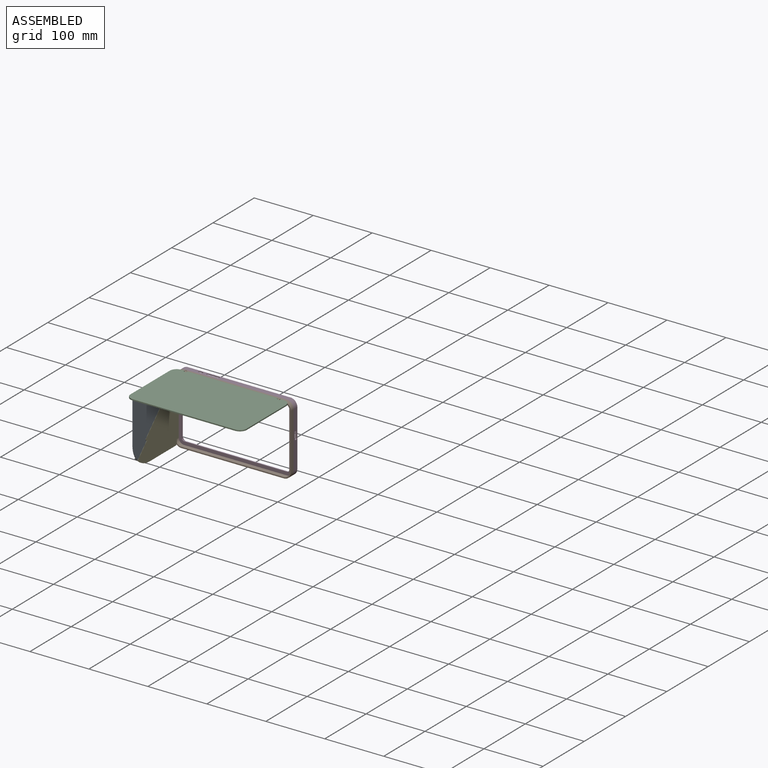
[diagram: assembled view]
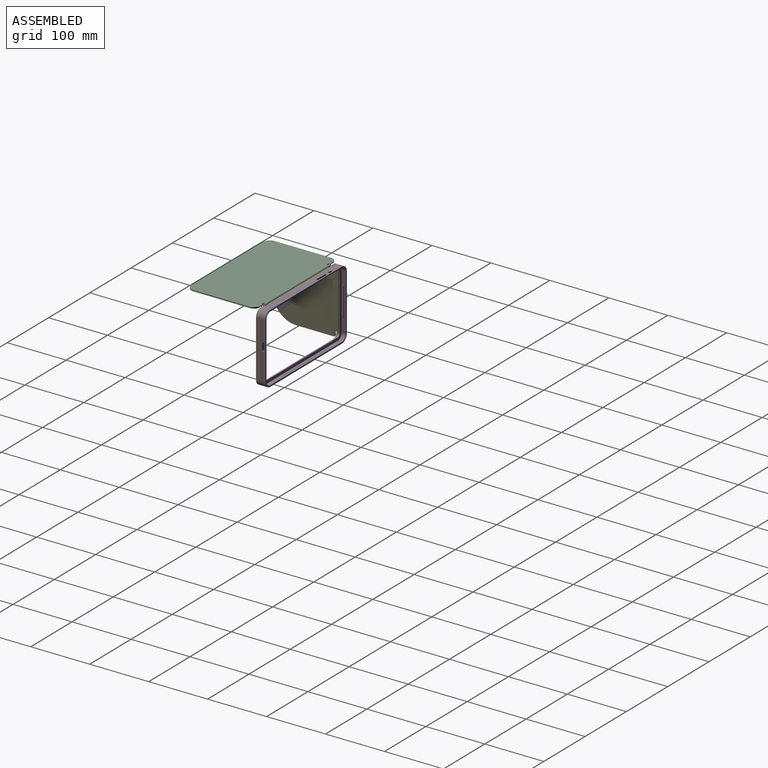
[diagram: assembled view, second angle]
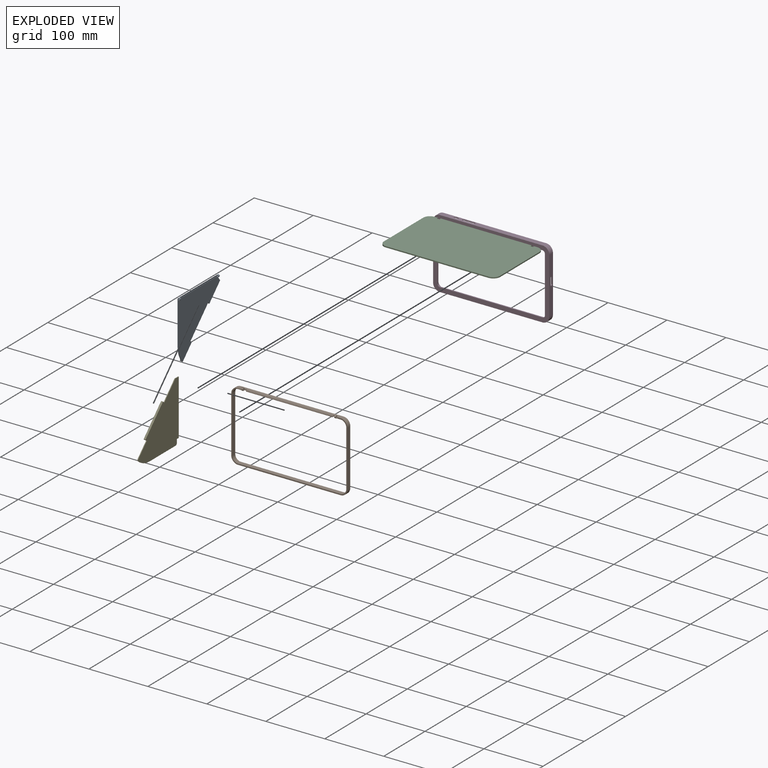
[diagram: exploded view]
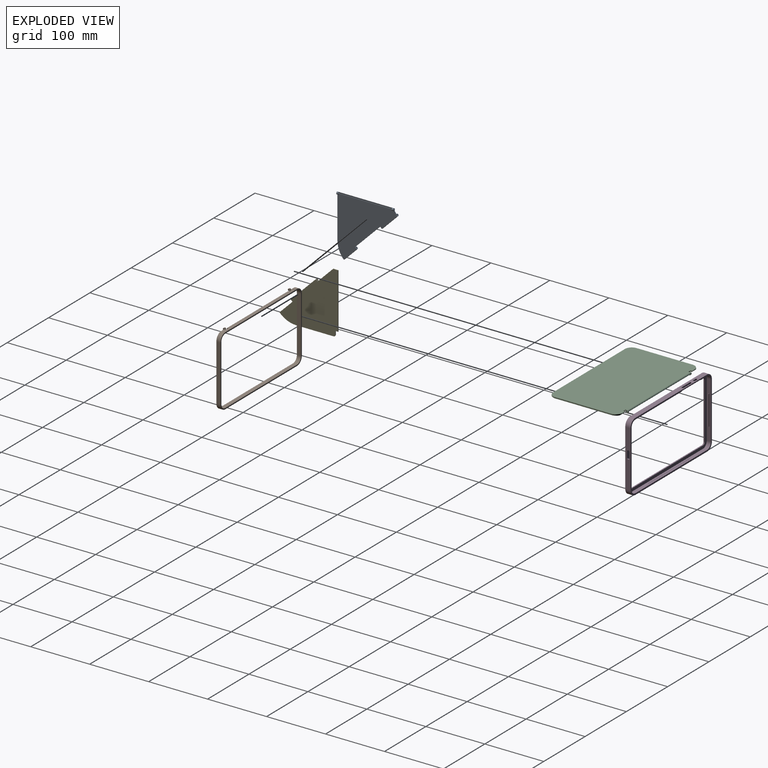
[diagram: exploded view, second angle]
ASSEMBLY  parts=5 mates=4
PART A: 29 faces, bbox 101.8x102.1x6.8 mm
  f0: plane 1.2x0.14mm, normal (0.71,-0.71,0), area 0.2mm2, adj f2,f3,f5,f28
  f1: plane 1.2x0.15mm, normal (0,1,0), area 0.2mm2, adj f2,f3,f14,f28
  f2: plane 99.14x97.2mm, normal (0,0,-1), area 5431.3mm2, adj f0,f1,f5,f6,f7,f10,f14,f15
  f3: plane 101.69x99.36mm, normal (0,0,1), area 5606.8mm2, adj f0,f1,f5,f6,f8,f9,f10,f11
  f4: cylinder r=1mm len=27.7mm, axis (0.71,0.71,0), area 185.8mm2, adj f5,f6,f27
  f5: plane 4x2.83mm, normal (0.71,0.71,0), area 11mm2, adj f0,f2,f3,f4,f7,f9,f26,f27
  f6: plane 4x2.97mm, normal (-0.71,-0.71,0), area 11.2mm2, adj f2,f3,f4,f7,f9,f10,f26,f27
  f7: cylinder r=2mm len=29.12mm, axis (0.71,0.71,0), area 294.8mm2, adj f2,f5,f6,f26
  f8: plane 21.77x21.77mm, normal (0.71,-0.71,0), area 36.9mm2, adj f3,f20,f22,f24
  f9: plane 26.29x26.29mm, normal (0.71,-0.71,0), area 44.6mm2, adj f3,f5,f6,f26
  f10: plane 42.71x42.71mm, normal (0.71,-0.71,0), area 72.5mm2, adj f2,f3,f6,f22
  f11: plane 4.8x2.8mm, normal (-1,0,0), area 6.6mm2, adj f3,f12,f16,f17,f18
  f12: plane 90.5x1.23mm, normal (0,0,1), area 111.6mm2, adj f11,f13,f16,f17
  f13: plane 4.8x2.8mm, normal (1,0,0), area 6.6mm2, adj f3,f12,f16,f17,f19
  f14: plane 5x4mm, normal (1,0,0), area 11.6mm2, adj f1,f2,f3,f16,f17,f18
  f15: plane 74.5x4mm, normal (-1,0,0), area 95mm2, adj f2,f3,f16,f17,f19,f24
  f16: cylinder r=1mm len=96.5mm, axis (1,0,0), area 154.2mm2, adj f3,f11,f12,f13,f14,f15
  f17: cylinder r=2mm len=96.5mm, axis (1,0,0), area 266.4mm2, adj f2,f11,f12,f13,f14,f15,f18,f19
  f18: cylinder r=0.8mm len=3mm, axis (1,0,0), area 3.8mm2, adj f3,f11,f14,f17
  f19: cylinder r=0.8mm len=3mm, axis (1,0,0), area 3.8mm2, adj f3,f13,f15,f17
  f20: plane 21.8x21.79mm, normal (0,0,1), area 1mm2, adj f8,f22,f24,f25
  f21: plane 22.58x22.52mm, normal (0,0,-1), area 36.8mm2, adj f22,f23,f24
  f22: plane 4x2.97mm, normal (0.71,0.71,0), area 11.2mm2, adj f2,f3,f8,f10,f20,f21,f23,f25
  f23: cylinder r=1mm len=23.16mm, axis (0.71,0.71,0), area 153.3mm2, adj f21,f22,f24
  f24: cylinder r=40mm len=27.61mm, axis (0,0,-1), area 42.8mm2, adj f2,f3,f8,f15,f20,f21,f23,f25
  f25: cylinder r=2mm len=24.6mm, axis (0.71,0.71,0), area 243.2mm2, adj f2,f20,f22,f24
  f26: plane 26.31x26.31mm, normal (0,0,1), area 1.2mm2, adj f5,f6,f7,f9
  f27: plane 27.14x27.14mm, normal (0,0,-1), area 44.6mm2, adj f4,f5,f6
  f28: plane 3.37x2.49mm, normal (0.8,0.6,0), area 5mm2, adj f0,f1,f2,f3
PART B: 41 faces, bbox 197x9x120 mm
  f0: cylinder r=1mm len=3mm, axis (1,0,0), area 16.5mm2, adj f1,f2,f29,f31,f39
  f1: plane 174x7mm, normal (0,0,1), area 1017.2mm2, adj f0,f2,f3,f17,f19,f20,f21,f22
  f2: plane 197x118mm, normal (0,-1,0), area 876.4mm2, adj f0,f1,f3,f4,f6,f7,f8,f9
  f3: cylinder r=11.5mm len=11.5mm, axis (0,1,0), area 122.2mm2, adj f1,f2,f12,f19,f34
  f4: plane 174x7mm, normal (0,0,-1), area 1197.4mm2, adj f2,f5,f6,f18,f19,f20,f21,f22
  f5: plane 147x1mm, normal (0,-1,0), area 147mm2, adj f4,f21,f24,f35
  f6: cylinder r=9.5mm len=9.5mm, axis (0,1,0), area 104.5mm2, adj f2,f4,f7,f19
  f7: plane 95x7mm, normal (-1,0,0), area 665mm2, adj f2,f6,f8,f19
  f8: cylinder r=9.5mm len=9.5mm, axis (0,1,0), area 104.5mm2, adj f2,f7,f9,f19
  f9: plane 174x7mm, normal (0,0,1), area 1218mm2, adj f2,f8,f10,f19
  f10: cylinder r=9.5mm len=9.5mm, axis (0,1,0), area 104.5mm2, adj f2,f9,f11,f19
  f11: plane 95x7mm, normal (1,0,0), area 665mm2, adj f2,f10,f18,f19
  f12: plane 95x7mm, normal (-1,0,0), area 665mm2, adj f2,f3,f13,f19
  f13: cylinder r=11.5mm len=11.5mm, axis (0,1,0), area 126.4mm2, adj f2,f12,f14,f19
  f14: plane 174x7mm, normal (0,0,-1), area 1218mm2, adj f2,f13,f15,f19
  f15: cylinder r=11.5mm len=11.5mm, axis (0,1,0), area 126.4mm2, adj f2,f14,f16,f19
  f16: plane 95x7mm, normal (1,0,0), area 665mm2, adj f2,f15,f17,f19
  f17: cylinder r=11.5mm len=11.5mm, axis (0,1,0), area 126.4mm2, adj f1,f2,f16,f19
  f18: cylinder r=9.5mm len=9.5mm, axis (0,1,0), area 104.5mm2, adj f2,f4,f11,f19
  f19: plane 197x118mm, normal (0,1,0), area 1207.9mm2, adj f1,f3,f4,f6,f7,f8,f9,f10
  f20: cylinder r=3mm len=4.6mm, axis (1,0,0), area 10.1mm2, adj f1,f4,f21,f22
  f21: plane 3x2mm, normal (1,0,0), area 4.7mm2, adj f1,f4,f5,f20,f35
  f22: plane 3x2mm, normal (-1,0,0), area 2.4mm2, adj f1,f4,f20,f26
  f23: cylinder r=3mm len=4.6mm, axis (-1,0,0), area 10.1mm2, adj f1,f4,f24,f25
  f24: plane 3x2mm, normal (-1,0,0), area 4.7mm2, adj f1,f4,f5,f23,f35
  f25: plane 3x2mm, normal (1,0,0), area 2.4mm2, adj f1,f4,f23,f30
  f26: cylinder r=2mm len=4mm, axis (-1,0,0), area 25.4mm2, adj f1,f4,f22,f27,f28
  f27: plane 4x4mm, normal (1,0,0), area 7.1mm2, adj f1,f2,f26,f36
  f28: plane 4x4mm, normal (-1,0,0), area 7.7mm2, adj f26,f32
  f29: plane 4x4mm, normal (-1,0,0), area 7.1mm2, adj f0,f1,f2,f30
  f30: cylinder r=2mm len=4mm, axis (-1,0,0), area 25.4mm2, adj f1,f4,f25,f29,f31
  f31: plane 4x4mm, normal (1,0,0), area 9.4mm2, adj f0,f30
  f32: cylinder r=1.25mm len=2.5mm, axis (-1,0,0), area 15.7mm2, adj f28,f33
  f33: plane 2.5x2.5mm, normal (-1,0,0), area 1.8mm2, adj f32,f36
  f34: cylinder r=1mm len=11.19mm, axis (1,0,0), area 12.5mm2, adj f1,f2,f3,f39
  f35: cylinder r=1mm len=147mm, axis (-1,0,0), area 230.9mm2, adj f1,f5,f21,f24
  f36: cylinder r=1mm len=2mm, axis (-1,0,0), area 5.3mm2, adj f1,f2,f27,f33,f37
  f37: plane 1x1mm, normal (-1,0,0), area 0.8mm2, adj f1,f2,f36
  f38: plane 2x1mm, normal (0,-1,0), area 1.6mm2, adj f1,f40
  f39: torus R=2mm, axis (0,0,-1), area 5.7mm2, adj f0,f1,f34,f40
  f40: cylinder r=1mm len=4mm, axis (0,1,0), area 12.6mm2, adj f1,f38,f39
PART C: 38 faces, bbox 197x6.5x120 mm
  f0: plane 2.5x2.5mm, normal (1,0,0), area 6.3mm2, adj f2,f5,f35,f37
  f1: plane 2.5x2.5mm, normal (-1,0,0), area 6.3mm2, adj f2,f5,f35,f37
  f2: cylinder r=2mm len=4mm, axis (0,0,1), area 15.7mm2, adj f0,f1,f35,f37
  f3: cylinder r=1mm len=2.5mm, axis (0,0,1), area 15.7mm2, adj f35,f37
  f4: plane 149x1mm, normal (0,1,0), area 149mm2, adj f8,f9,f24,f27
  f5: plane 197x117mm, normal (0,1,0), area 22902.5mm2, adj f0,f1,f7,f8,f9,f12,f13,f14
  f6: plane 5.6x1mm, normal (0,0,1), area 5.6mm2, adj f7,f11,f21,f28
  f7: cylinder r=11.5mm len=11.5mm, axis (0,1,0), area 31.9mm2, adj f5,f6,f11,f12,f28
  f8: plane 4x2mm, normal (-1,0,0), area 4.7mm2, adj f4,f5,f24,f27
  f9: plane 4x2mm, normal (1,0,0), area 4.7mm2, adj f4,f5,f24,f27
  f10: plane 5.6x0.9mm, normal (0,0,1), area 5mm2, adj f11,f17,f19,f29
  f11: plane 197x118mm, normal (0,-1,0), area 23103.3mm2, adj f6,f7,f10,f12,f13,f14,f15,f16
  f12: plane 95x2mm, normal (-1,0,0), area 190mm2, adj f5,f7,f11,f13
  f13: cylinder r=11.5mm len=11.5mm, axis (0,1,0), area 36.1mm2, adj f5,f11,f12,f14
  f14: plane 174x2mm, normal (0,0,-1), area 348mm2, adj f5,f11,f13,f15
  f15: cylinder r=11.5mm len=11.5mm, axis (0,1,0), area 36.1mm2, adj f5,f11,f14,f16
  f16: plane 95x2mm, normal (1,0,0), area 190mm2, adj f5,f11,f15,f17
  f17: cylinder r=11.5mm len=11.5mm, axis (0,1,0), area 32.4mm2, adj f5,f10,f11,f16,f29
  f18: cylinder r=3.4mm len=5.3mm, axis (-1,0,0), area 11.3mm2, adj f5,f11,f19,f20
  f19: plane 3.4x2mm, normal (-1,0,0), area 5.8mm2, adj f5,f10,f11,f18,f29
  f20: plane 3.4x2mm, normal (1,0,0), area 3.2mm2, adj f5,f11,f18,f24
  f21: plane 3.4x2mm, normal (1,0,0), area 5.6mm2, adj f5,f6,f11,f22,f28
  f22: cylinder r=3.4mm len=5.3mm, axis (-1,0,0), area 11.3mm2, adj f5,f11,f21,f23
  f23: plane 3.4x2mm, normal (-1,0,0), area 3.2mm2, adj f5,f11,f22,f24
  f24: cylinder r=2mm len=154.2mm, axis (1,0,0), area 523.4mm2, adj f4,f5,f8,f9,f11,f20,f23,f25
  f25: plane 4x4mm, normal (1,0,0), area 9.4mm2, adj f24,f27
  f26: plane 4x4mm, normal (-1,0,0), area 9.4mm2, adj f24,f27
  f27: cylinder r=1mm len=154.2mm, axis (-1,0,0), area 500.8mm2, adj f4,f5,f8,f9,f25,f26
  f28: cylinder r=1mm len=10.29mm, axis (-1,0,0), area 14.5mm2, adj f5,f6,f7,f21
  f29: plane 10.51x1.1mm, normal (0,0.71,0.71), area 13.9mm2, adj f5,f10,f17,f19
  f30: plane 4.5x4mm, normal (0,0,1), area 13.1mm2, adj f5,f31,f32,f33,f34
  f31: plane 2.5x2.5mm, normal (-1,0,0), area 6.3mm2, adj f5,f30,f32,f36
  f32: cylinder r=2mm len=4mm, axis (0,0,1), area 15.7mm2, adj f30,f31,f33,f36
  f33: plane 2.5x2.5mm, normal (1,0,0), area 6.3mm2, adj f5,f30,f32,f36
  f34: cylinder r=1mm len=2.5mm, axis (0,0,1), area 15.7mm2, adj f30,f36
  f35: plane 4.5x4mm, normal (0,0,-1), area 13.1mm2, adj f0,f1,f2,f3,f5
  f36: plane 4.5x4mm, normal (0,0,-1), area 13.1mm2, adj f5,f31,f32,f33,f34
  f37: plane 4.5x4mm, normal (0,0,1), area 13.1mm2, adj f0,f1,f2,f3,f5
PART D: 61 faces, bbox 197x9x118 mm
  f0: plane 16x7mm, normal (0,0,-1), area 112mm2, adj f1,f26,f31,f43
  f1: plane 197x118mm, normal (0,1,0), area 1461mm2, adj f0,f5,f6,f8,f9,f11,f12,f14
  f2: cylinder r=1.35mm len=100mm, axis (-1,0,0), area 225.3mm2, adj f9,f36,f39
  f3: cylinder r=1.35mm len=20mm, axis (0,0,-1), area 45.1mm2, adj f16,f37,f41
  f4: cylinder r=1.35mm len=50mm, axis (0,0,1), area 112.6mm2, adj f30,f34,f35
  f5: cylinder r=11.5mm len=11.5mm, axis (0,1,0), area 162.6mm2, adj f1,f8,f28,f29
  f6: cylinder r=9mm len=9mm, axis (0,1,0), area 99mm2, adj f1,f9,f30,f31
  f7: cylinder r=4mm len=4mm, axis (0,1,0), area 12.6mm2, adj f10,f28,f31,f32
  f8: plane 174x9mm, normal (0,0,-1), area 1566mm2, adj f1,f5,f11,f28
  f9: plane 174x7mm, normal (0,0,1), area 1018mm2, adj f1,f2,f6,f12,f31,f36,f39
  f10: plane 174x2mm, normal (0,0,1), area 348mm2, adj f7,f13,f28,f31
  f11: cylinder r=11.5mm len=11.5mm, axis (0,1,0), area 162.6mm2, adj f1,f8,f14,f28
  f12: cylinder r=9mm len=9mm, axis (0,1,0), area 99mm2, adj f1,f9,f16,f31
  f13: cylinder r=4mm len=4mm, axis (0,1,0), area 12.6mm2, adj f10,f17,f28,f31
  f14: plane 95x9mm, normal (1,0,0), area 798.4mm2, adj f1,f11,f18,f28,f53,f54,f55,f56
  f15: cylinder r=1.35mm len=35mm, axis (0,0,-1), area 78.8mm2, adj f16,f40,f42
  f16: plane 95x7mm, normal (-1,0,0), area 498.4mm2, adj f1,f3,f12,f15,f19,f31,f37,f40
  f17: plane 95x2mm, normal (-1,0,0), area 190mm2, adj f13,f20,f28,f31
  f18: cylinder r=11.5mm len=11.5mm, axis (0,1,0), area 162.6mm2, adj f1,f14,f21,f28
  f19: cylinder r=9mm len=9mm, axis (0,1,0), area 99mm2, adj f1,f16,f23,f31
  f20: cylinder r=4mm len=4mm, axis (0,1,0), area 12.6mm2, adj f17,f24,f28,f31
  f21: plane 174x9mm, normal (0,0,1), area 1474.4mm2, adj f1,f18,f25,f28,f45,f46,f47,f48
  f22: cylinder r=1.35mm len=62mm, axis (1,0,0), area 139.7mm2, adj f23,f33,f38
  f23: plane 113x7mm, normal (0,0,-1), area 667mm2, adj f1,f19,f22,f31,f33,f38
  f24: plane 174x2mm, normal (0,0,-1), area 348mm2, adj f20,f27,f28,f31
  f25: cylinder r=11.5mm len=11.5mm, axis (0,1,0), area 162.6mm2, adj f1,f21,f28,f29
  f26: cylinder r=9mm len=9mm, axis (0,1,0), area 99mm2, adj f0,f1,f30,f31
  f27: cylinder r=4mm len=4mm, axis (0,1,0), area 12.6mm2, adj f24,f28,f31,f32
  f28: plane 197x118mm, normal (0,-1,0), area 4400.2mm2, adj f5,f7,f8,f10,f11,f13,f14,f17
  f29: plane 95x9mm, normal (-1,0,0), area 855mm2, adj f1,f5,f25,f28
  f30: plane 95x7mm, normal (1,0,0), area 565mm2, adj f1,f4,f6,f26,f31,f34,f35
  f31: plane 192x114mm, normal (0,1,0), area 2939.2mm2, adj f0,f6,f7,f9,f10,f12,f13,f16
  f32: plane 95x2mm, normal (1,0,0), area 190mm2, adj f7,f27,f28,f31
  f33: plane 7x1.44mm, normal (-1,0,0), area 7.6mm2, adj f1,f22,f23,f31,f44
  f34: plane 2x0.44mm, normal (0,0,1), area 0.6mm2, adj f4,f30
  f35: plane 2x0.44mm, normal (0,0,-1), area 0.6mm2, adj f4,f30
  f36: plane 2x0.44mm, normal (-1,0,0), area 0.6mm2, adj f2,f9
  f37: plane 2x0.44mm, normal (0,0,1), area 0.6mm2, adj f3,f16
  f38: plane 2x0.44mm, normal (1,0,0), area 0.6mm2, adj f22,f23
  f39: plane 2x0.44mm, normal (1,0,0), area 0.6mm2, adj f2,f9
  f40: plane 2x0.44mm, normal (0,0,-1), area 0.6mm2, adj f15,f16
  f41: plane 2x0.44mm, normal (0,0,-1), area 0.6mm2, adj f3,f16
  f42: plane 2x0.44mm, normal (0,0,1), area 0.6mm2, adj f15,f16
  f43: plane 7x1mm, normal (1,0,0), area 7mm2, adj f0,f1,f31,f44
  f44: plane 45x7mm, normal (0,0,-1), area 223.4mm2, adj f1,f31,f33,f43,f45,f46,f47,f48
  f45: cylinder r=1.6mm len=3.2mm, axis (0,0,-1), area 7.5mm2, adj f21,f44,f46,f48
  f46: plane 18.8x1.5mm, normal (0,-1,0), area 28.2mm2, adj f21,f44,f45,f47
  f47: cylinder r=1.6mm len=3.2mm, axis (0,0,-1), area 7.5mm2, adj f21,f44,f46,f48
  f48: plane 18.8x1.5mm, normal (0,1,0), area 28.2mm2, adj f21,f44,f45,f47
  f49: cylinder r=1.6mm len=3.2mm, axis (0,0,-1), area 7.5mm2, adj f21,f44,f50,f52
  f50: plane 4.8x1.5mm, normal (0,-1,0), area 7.2mm2, adj f21,f44,f49,f51
  f51: cylinder r=1.6mm len=3.2mm, axis (0,0,-1), area 7.5mm2, adj f21,f44,f50,f52
  f52: plane 4.8x1.5mm, normal (0,1,0), area 7.2mm2, adj f21,f44,f49,f51
  f53: cylinder r=1.6mm len=2.5mm, axis (-1,0,0), area 6.3mm2, adj f14,f16,f54,f58
  f54: plane 10.8x2.5mm, normal (0,1,0), area 27mm2, adj f14,f16,f53,f55
  f55: cylinder r=1.6mm len=2.5mm, axis (-1,0,0), area 6.3mm2, adj f14,f16,f54,f56
  f56: plane 2.5x1mm, normal (0,0,-1), area 2.5mm2, adj f14,f16,f55,f57
  f57: cylinder r=1.6mm len=2.5mm, axis (-1,0,0), area 6.3mm2, adj f14,f16,f56,f59
  f58: plane 2.5x1mm, normal (0,0,1), area 2.5mm2, adj f14,f16,f53,f60
  f59: plane 10.8x2.5mm, normal (0,-1,0), area 27mm2, adj f14,f16,f57,f60
  f60: cylinder r=1.6mm len=2.5mm, axis (-1,0,0), area 6.3mm2, adj f14,f16,f58,f59
PART E: 18 faces, bbox 99.3x103.2x4 mm
  f0: plane 103.16x99.31mm, normal (0,0,-1), area 5980.9mm2, adj f3,f4,f5,f6,f7,f9,f10,f11
  f1: plane 103.16x99.31mm, normal (0,0,1), area 6197.4mm2, adj f3,f4,f6,f7,f8,f9,f10,f11
  f2: cylinder r=1mm len=43.56mm, axis (0.71,0.71,0), area 297.8mm2, adj f3,f4,f16
  f3: plane 4x2.83mm, normal (-0.71,-0.71,0), area 11mm2, adj f0,f1,f2,f5,f6,f8,f16
  f4: plane 4x2.83mm, normal (0.71,0.71,0), area 11mm2, adj f0,f1,f2,f5,f7,f8,f16
  f5: cylinder r=2mm len=44.83mm, axis (0.71,0.71,0), area 369.8mm2, adj f0,f3,f4,f8
  f6: plane 22.06x22.06mm, normal (-0.71,0.71,0), area 37.4mm2, adj f0,f1,f3,f9
  f7: plane 26.71x26.71mm, normal (-0.71,0.71,0), area 45.3mm2, adj f0,f1,f4,f17
  f8: plane 42.14x42.14mm, normal (-0.71,0.71,0), area 171.2mm2, adj f1,f3,f4,f5
  f9: cylinder r=40mm len=28.81mm, axis (0,0,-1), area 38.6mm2, adj f0,f1,f6,f10
  f10: plane 63x1.2mm, normal (0,-1,0), area 75.6mm2, adj f0,f1,f9,f15
  f11: plane 4.5x1.2mm, normal (0,1,0), area 5.4mm2, adj f0,f1,f12,f17
  f12: plane 94x1.2mm, normal (1,0,0), area 112.8mm2, adj f0,f1,f11,f13
  f13: plane 4.5x1.2mm, normal (0,-1,0), area 5.4mm2, adj f0,f1,f12,f14
  f14: plane 6x1.2mm, normal (1,0,0), area 7.2mm2, adj f0,f1,f13,f15
  f15: cylinder r=3mm len=3mm, axis (0,0,-1), area 5.7mm2, adj f0,f1,f10,f14
  f16: plane 42.99x42.99mm, normal (0,0,-1), area 71.5mm2, adj f2,f3,f4
  f17: plane 3.89x1.2mm, normal (0.04,1,0), area 4.7mm2, adj f0,f1,f7,f11
PLACE A rot(axis=(0.58,0.58,0.58),120deg) t=(-96.5,-5.5,0)mm
PLACE B rot(axis=(0.15,0.59,-0.8),0deg) t=(0,0,0)mm
PLACE C rot(axis=(-1,0,0),90deg) t=(-0.1,-68,50)mm
PLACE D at identity fixed
PLACE E rot(axis=(0.58,0.58,0.58),120deg) t=(-96.5,-5.5,0)mm
MATE revolute A.f4 <-> E.f2  axis (0,0.71,0.71) through (-96.3,-105.96,-42.3)mm
MATE fastened D.f28 <-> B.f19  axis (0,-1,0) through (0,-2,59)mm
MATE revolute B.f0 <-> C.f24  axis (-1,0,0) through (77.5,-9,59)mm
MATE revolute A.f16 <-> C.f2  axis (0,1,0) through (-93.5,-67.25,56.5)mm
